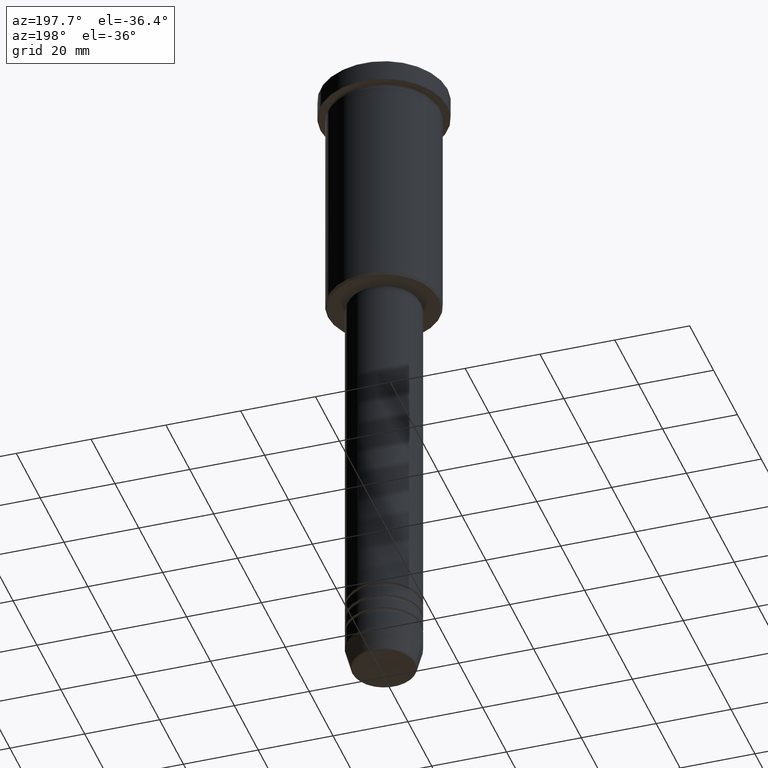
[diagram: clean part render]
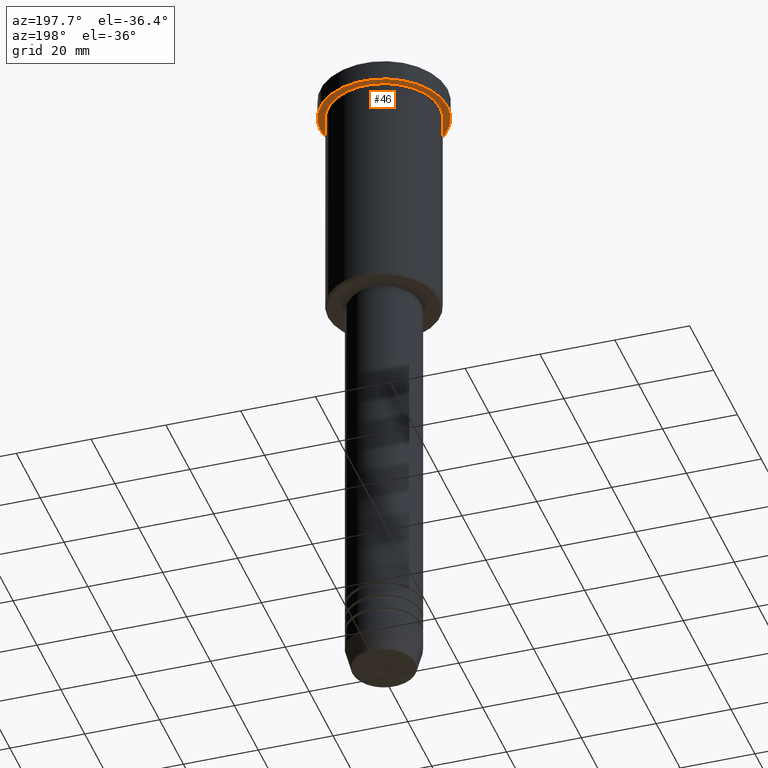
[diagram: same view with one face highlighted and labeled with its STEP entity id]
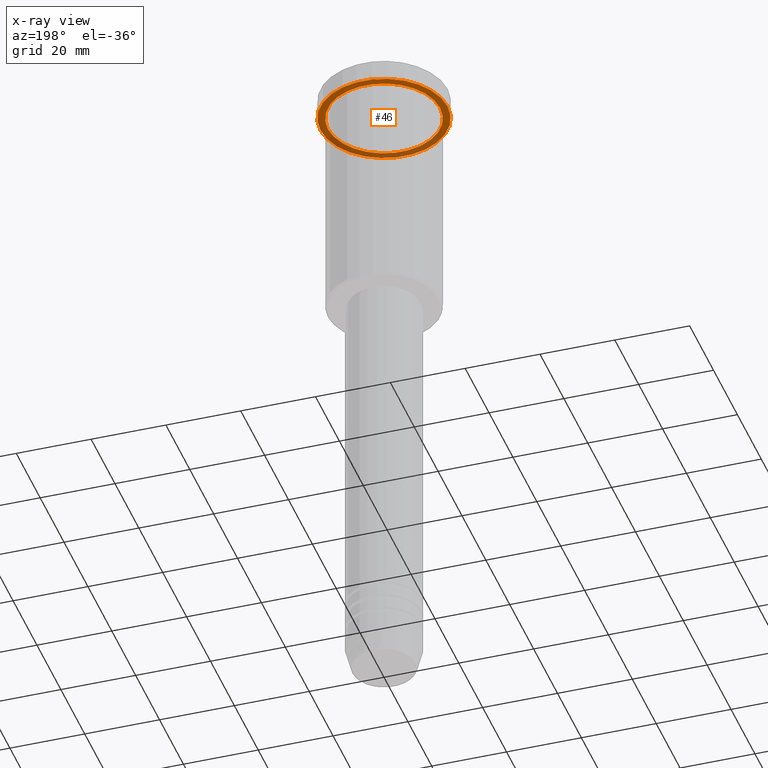
[diagram: x-ray of the same camera — body ghosted, the highlighted face saturated]
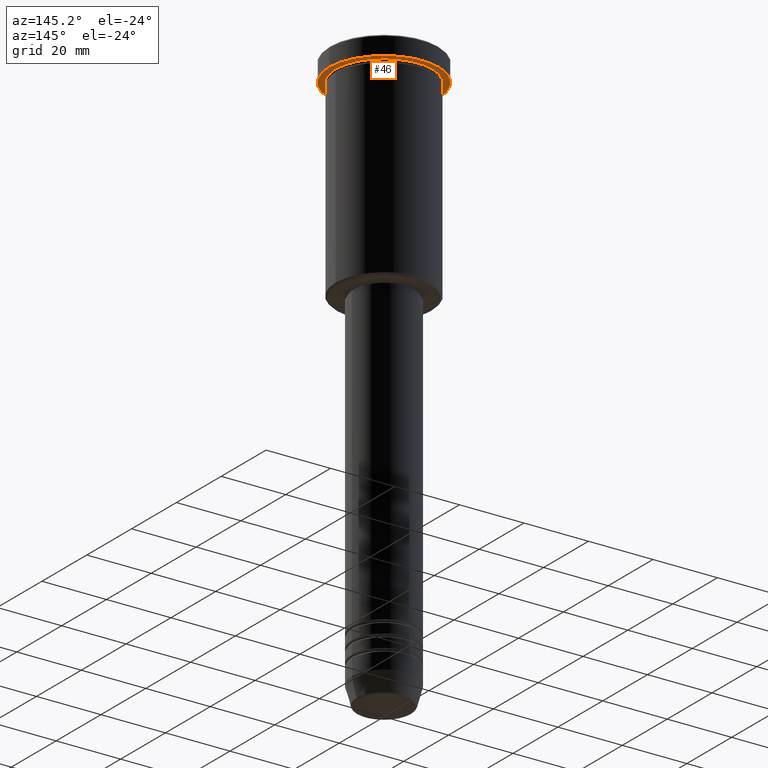
[diagram: same view with one face highlighted and labeled with its STEP entity id]
A machine part, auxiliary view. The second image highlights one B-rep face of the part: STEP entity #46.
The next image is the same camera in x-ray: the body ghosted, the highlighted face saturated — about 33% of this face is hidden behind the body in this view.
A second angle (auxiliary view) of the same face is appended — the face is thin or edge-on in the first view.
In plain terms, the highlighted planar face has unit normal (0, 0, -1).
Its self-contained STEP definition (entity closure, byte-faithful):
#7 = CARTESIAN_POINT ( 'NONE',  ( 0.000000000000000000, 0.000000000000000000, -5.999999999999994671 ) ) ;
#46 = ADVANCED_FACE ( 'NONE', ( #1181, #274 ), #835, .T. ) ;
#57 = CIRCLE ( 'NONE', #720, 15.00000000000000000 ) ;
#127 = CARTESIAN_POINT ( 'NONE',  ( -15.00000000000000000, 0.000000000000000000, -5.999999999999994671 ) ) ;
#132 = CARTESIAN_POINT ( 'NONE',  ( 15.00000000000000000, 1.836970198721029589E-15, -5.999999999999994671 ) ) ;
#188 = EDGE_LOOP ( 'NONE', ( #1165, #891 ) ) ;
#247 = AXIS2_PLACEMENT_3D ( 'NONE', #846, #298, #671 ) ;
#274 = FACE_OUTER_BOUND ( 'NONE', #1020, .T. ) ;
#282 = AXIS2_PLACEMENT_3D ( 'NONE', #661, #1111, #657 ) ;
#298 = DIRECTION ( 'NONE',  ( -0.000000000000000000, -0.000000000000000000, 1.000000000000000000 ) ) ;
#355 = CARTESIAN_POINT ( 'NONE',  ( 0.000000000000000000, 0.000000000000000000, -5.999999999999994671 ) ) ;
#372 = CARTESIAN_POINT ( 'NONE',  ( 17.00000000000000000, 0.000000000000000000, -5.999999999999994671 ) ) ;
#431 = EDGE_CURVE ( 'NONE', #681, #1042, #57, .T. ) ;
#435 = CIRCLE ( 'NONE', #786, 15.00000000000000000 ) ;
#537 = AXIS2_PLACEMENT_3D ( 'NONE', #1122, #856, #660 ) ;
#555 = DIRECTION ( 'NONE',  ( -0.000000000000000000, -0.000000000000000000, 1.000000000000000000 ) ) ;
#613 = EDGE_CURVE ( 'NONE', #913, #629, #1167, .T. ) ;
#629 = VERTEX_POINT ( 'NONE', #754 ) ;
#657 = DIRECTION ( 'NONE',  ( -1.000000000000000000, 0.000000000000000000, -0.000000000000000000 ) ) ;
#660 = DIRECTION ( 'NONE',  ( 1.000000000000000000, 0.000000000000000000, 0.000000000000000000 ) ) ;
#661 = CARTESIAN_POINT ( 'NONE',  ( 0.000000000000000000, 17.00000000000000000, -5.999999999999994671 ) ) ;
#671 = DIRECTION ( 'NONE',  ( 1.000000000000000000, 0.000000000000000000, 0.000000000000000000 ) ) ;
#681 = VERTEX_POINT ( 'NONE', #127 ) ;
#701 = EDGE_CURVE ( 'NONE', #629, #913, #980, .T. ) ;
#720 = AXIS2_PLACEMENT_3D ( 'NONE', #355, #1180, #999 ) ;
#723 = ORIENTED_EDGE ( 'NONE', *, *, #701, .F. ) ;
#754 = CARTESIAN_POINT ( 'NONE',  ( -17.00000000000000000, 2.081899558550500280E-15, -5.999999999999994671 ) ) ;
#786 = AXIS2_PLACEMENT_3D ( 'NONE', #7, #555, #928 ) ;
#824 = ORIENTED_EDGE ( 'NONE', *, *, #613, .F. ) ;
#835 = PLANE ( 'NONE',  #282 ) ;
#846 = CARTESIAN_POINT ( 'NONE',  ( 0.000000000000000000, 0.000000000000000000, -5.999999999999994671 ) ) ;
#856 = DIRECTION ( 'NONE',  ( -0.000000000000000000, -0.000000000000000000, 1.000000000000000000 ) ) ;
#891 = ORIENTED_EDGE ( 'NONE', *, *, #919, .T. ) ;
#913 = VERTEX_POINT ( 'NONE', #372 ) ;
#919 = EDGE_CURVE ( 'NONE', #1042, #681, #435, .T. ) ;
#928 = DIRECTION ( 'NONE',  ( -1.000000000000000000, 0.000000000000000000, 0.000000000000000000 ) ) ;
#980 = CIRCLE ( 'NONE', #247, 17.00000000000000000 ) ;
#999 = DIRECTION ( 'NONE',  ( -1.000000000000000000, 0.000000000000000000, 0.000000000000000000 ) ) ;
#1020 = EDGE_LOOP ( 'NONE', ( #824, #723 ) ) ;
#1042 = VERTEX_POINT ( 'NONE', #132 ) ;
#1111 = DIRECTION ( 'NONE',  ( 0.000000000000000000, 0.000000000000000000, -1.000000000000000000 ) ) ;
#1122 = CARTESIAN_POINT ( 'NONE',  ( 0.000000000000000000, 0.000000000000000000, -5.999999999999994671 ) ) ;
#1165 = ORIENTED_EDGE ( 'NONE', *, *, #431, .T. ) ;
#1167 = CIRCLE ( 'NONE', #537, 17.00000000000000000 ) ;
#1180 = DIRECTION ( 'NONE',  ( -0.000000000000000000, -0.000000000000000000, 1.000000000000000000 ) ) ;
#1181 = FACE_BOUND ( 'NONE', #188, .T. ) ;